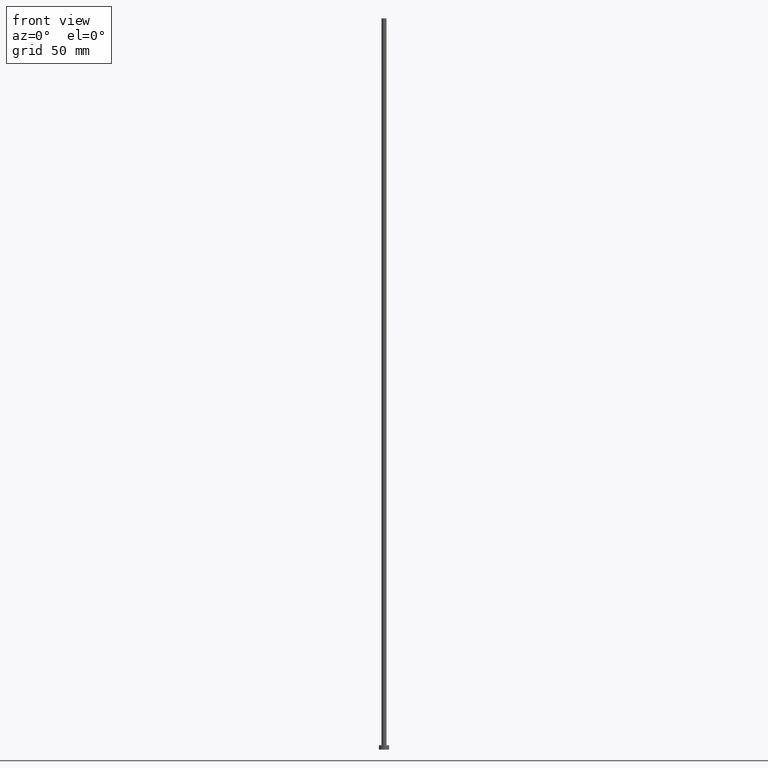
[diagram: clean part render]
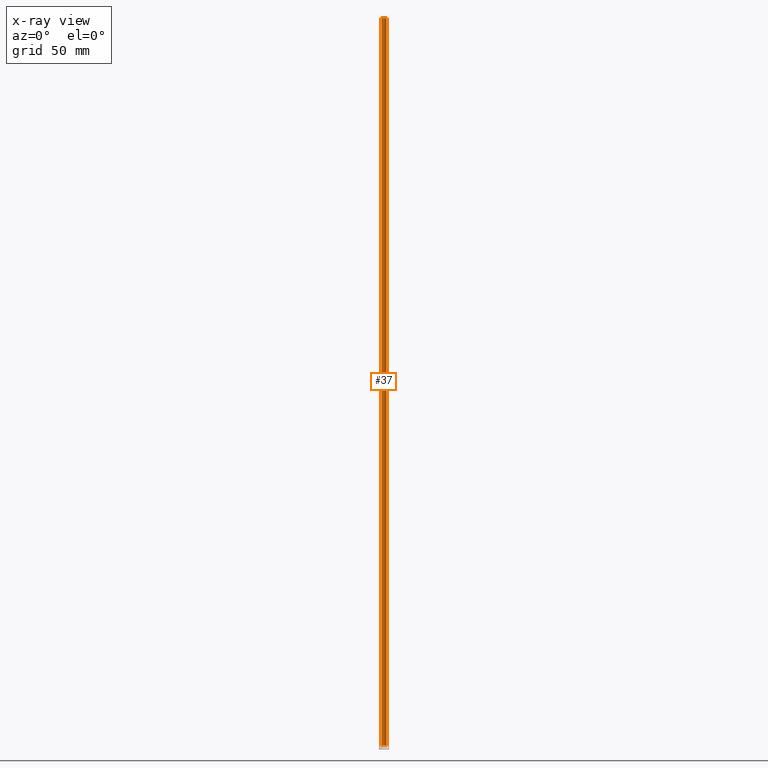
[diagram: x-ray — body ghosted, one internal face saturated and labeled with its STEP entity id]
A machine part, front view, then the same camera in x-ray: the body is ghosted and one INTERNAL B-rep face — a face not visible from any outside direction — is saturated and labeled: STEP entity #37.
In plain terms, the highlighted cylindrical surface (edge-blend (fillet) strip) has radius 1.75 mm, axis along (-0, -0, -1).
Its self-contained STEP definition (entity closure, byte-faithful):
#4 = EDGE_CURVE ( 'NONE', #187, #150, #153, .T. ) ;
#10 = CARTESIAN_POINT ( 'NONE',  ( 1.750000000000000000, 2.143131898507867804E-16, 500.0000000000000000 ) ) ;
#14 = CARTESIAN_POINT ( 'NONE',  ( 0.000000000000000000, 0.000000000000000000, 3.000000000000000000 ) ) ;
#15 = ORIENTED_EDGE ( 'NONE', *, *, #188, .T. ) ;
#18 = CARTESIAN_POINT ( 'NONE',  ( -1.750000000000000000, 0.000000000000000000, 500.0000000000000000 ) ) ;
#31 = LINE ( 'NONE', #10, #113 ) ;
#36 = AXIS2_PLACEMENT_3D ( 'NONE', #105, #88, #241 ) ;
#37 = ADVANCED_FACE ( 'NONE', ( #177 ), #126, .T. ) ;
#51 = VECTOR ( 'NONE', #64, 1000.000000000000000 ) ;
#57 = DIRECTION ( 'NONE',  ( -0.000000000000000000, -0.000000000000000000, -1.000000000000000000 ) ) ;
#62 = CIRCLE ( 'NONE', #180, 1.750000000000000000 ) ;
#63 = ORIENTED_EDGE ( 'NONE', *, *, #250, .F. ) ;
#64 = DIRECTION ( 'NONE',  ( -0.000000000000000000, -0.000000000000000000, -1.000000000000000000 ) ) ;
#65 = CIRCLE ( 'NONE', #205, 1.750000000000000000 ) ;
#78 = DIRECTION ( 'NONE',  ( 1.000000000000000000, 0.000000000000000000, 0.000000000000000000 ) ) ;
#88 = DIRECTION ( 'NONE',  ( -0.000000000000000000, -0.000000000000000000, -1.000000000000000000 ) ) ;
#99 = EDGE_LOOP ( 'NONE', ( #63, #248, #15, #132 ) ) ;
#105 = CARTESIAN_POINT ( 'NONE',  ( 0.000000000000000000, 0.000000000000000000, 500.0000000000000000 ) ) ;
#113 = VECTOR ( 'NONE', #57, 1000.000000000000000 ) ;
#115 = CARTESIAN_POINT ( 'NONE',  ( 0.000000000000000000, 0.000000000000000000, 500.0000000000000000 ) ) ;
#126 = CYLINDRICAL_SURFACE ( 'NONE', #36, 1.750000000000000000 ) ;
#132 = ORIENTED_EDGE ( 'NONE', *, *, #4, .F. ) ;
#140 = EDGE_CURVE ( 'NONE', #212, #232, #31, .T. ) ;
#150 = VERTEX_POINT ( 'NONE', #159 ) ;
#153 = LINE ( 'NONE', #18, #51 ) ;
#159 = CARTESIAN_POINT ( 'NONE',  ( -1.750000000000000000, 0.000000000000000000, 3.000000000000000000 ) ) ;
#177 = FACE_OUTER_BOUND ( 'NONE', #99, .T. ) ;
#180 = AXIS2_PLACEMENT_3D ( 'NONE', #14, #251, #78 ) ;
#186 = CARTESIAN_POINT ( 'NONE',  ( -1.750000000000000000, 0.000000000000000000, 500.0000000000000000 ) ) ;
#187 = VERTEX_POINT ( 'NONE', #186 ) ;
#188 = EDGE_CURVE ( 'NONE', #232, #150, #62, .T. ) ;
#205 = AXIS2_PLACEMENT_3D ( 'NONE', #115, #255, #237 ) ;
#212 = VERTEX_POINT ( 'NONE', #213 ) ;
#213 = CARTESIAN_POINT ( 'NONE',  ( 1.750000000000000000, 2.143131898507867804E-16, 500.0000000000000000 ) ) ;
#232 = VERTEX_POINT ( 'NONE', #235 ) ;
#235 = CARTESIAN_POINT ( 'NONE',  ( 1.750000000000000000, 2.143131898507867804E-16, 3.000000000000000000 ) ) ;
#237 = DIRECTION ( 'NONE',  ( 1.000000000000000000, 0.000000000000000000, 0.000000000000000000 ) ) ;
#241 = DIRECTION ( 'NONE',  ( -1.000000000000000000, 0.000000000000000000, 0.000000000000000000 ) ) ;
#248 = ORIENTED_EDGE ( 'NONE', *, *, #140, .T. ) ;
#250 = EDGE_CURVE ( 'NONE', #212, #187, #65, .T. ) ;
#251 = DIRECTION ( 'NONE',  ( 0.000000000000000000, 0.000000000000000000, 1.000000000000000000 ) ) ;
#255 = DIRECTION ( 'NONE',  ( 0.000000000000000000, 0.000000000000000000, 1.000000000000000000 ) ) ;